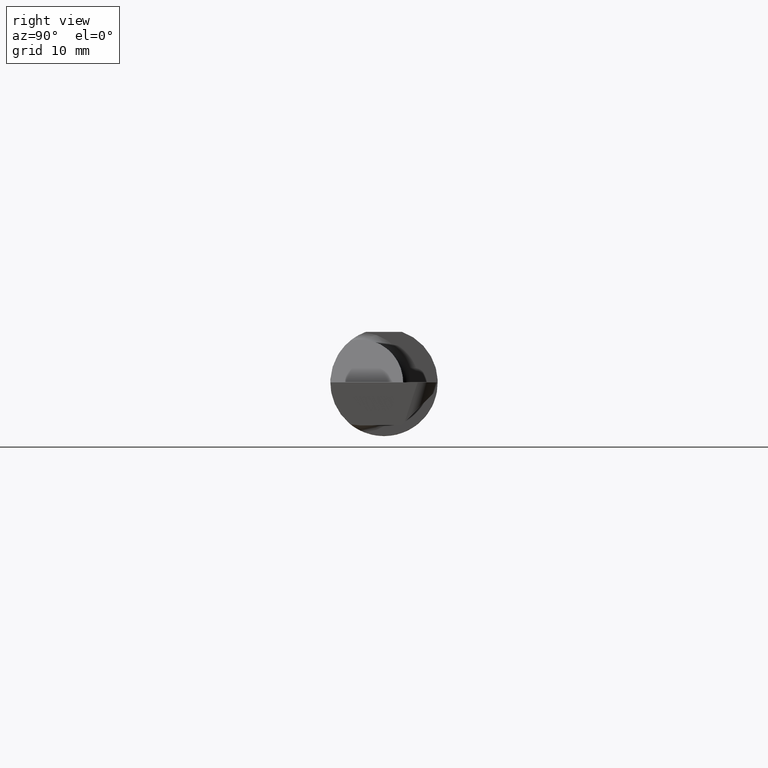
[diagram: clean part render]
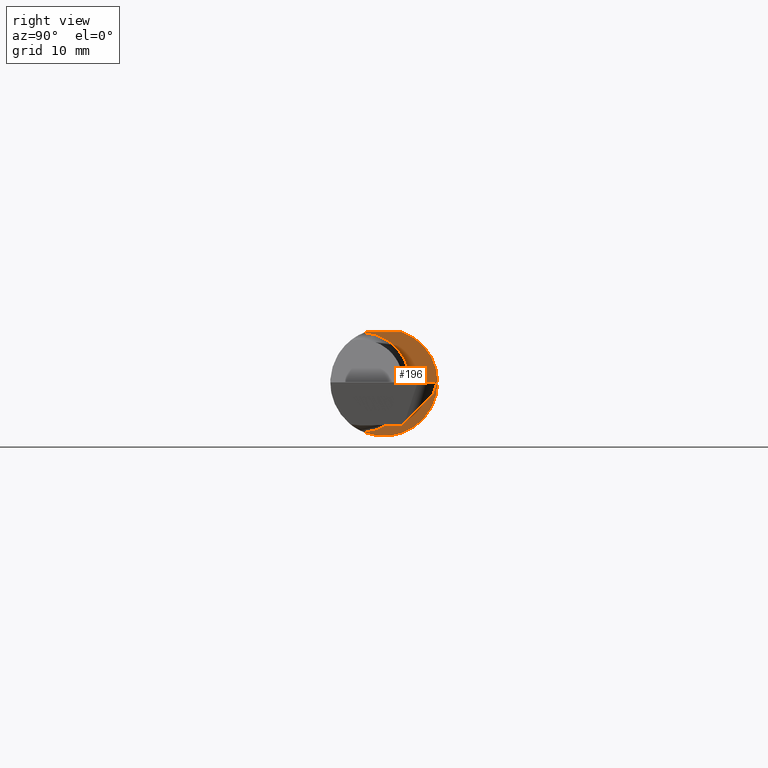
[diagram: same view with one face highlighted and labeled with its STEP entity id]
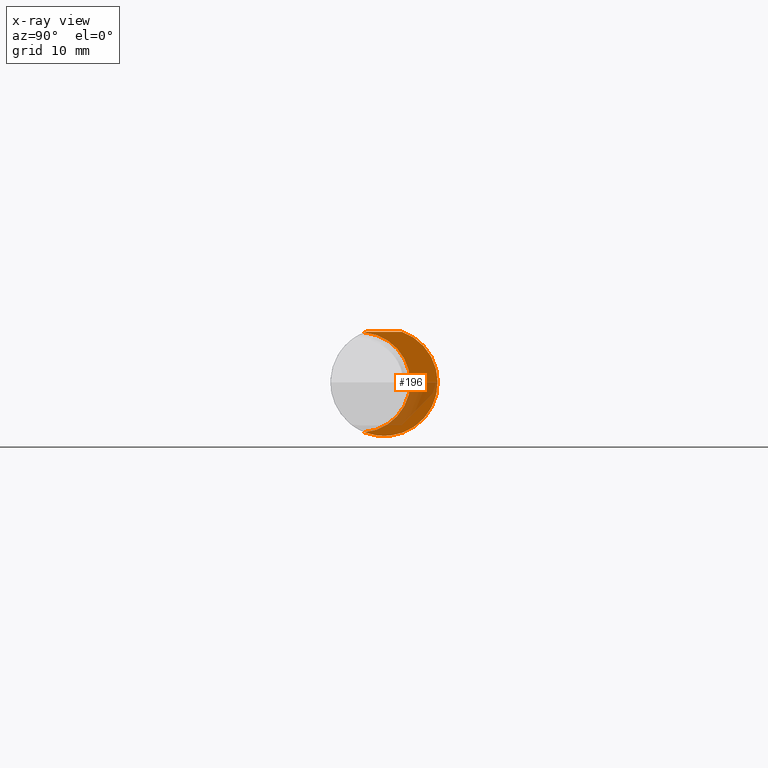
[diagram: x-ray of the same camera — body ghosted, the highlighted face saturated]
A machine part, right view. The second image highlights one B-rep face of the part: STEP entity #196.
The next image is the same camera in x-ray: the body ghosted, the highlighted face saturated — about 28% of this face is hidden behind the body in this view.
In plain terms, the highlighted planar face has unit normal (1, 0, 0).
Its self-contained STEP definition (entity closure, byte-faithful):
#8 = CIRCLE ( 'NONE', #465, 0.1873499999999999888 ) ;
#40 = VERTEX_POINT ( 'NONE', #216 ) ;
#64 = DIRECTION ( 'NONE',  ( 0.000000000000000000, 1.000000000000000000, 0.000000000000000000 ) ) ;
#72 = CARTESIAN_POINT ( 'NONE',  ( 1.199999999999999956, 0.000000000000000000, 0.000000000000000000 ) ) ;
#79 = VECTOR ( 'NONE', #509, 39.37007874015748143 ) ;
#99 = EDGE_LOOP ( 'NONE', ( #107, #209, #305, #167 ) ) ;
#107 = ORIENTED_EDGE ( 'NONE', *, *, #272, .T. ) ;
#132 = CARTESIAN_POINT ( 'NONE',  ( 1.199999999999999956, -0.08335000000000007681, 0.000000000000000000 ) ) ;
#138 = CARTESIAN_POINT ( 'NONE',  ( 1.199999999999999956, -0.06325108694718287183, 0.1763499999999999235 ) ) ;
#158 = VERTEX_POINT ( 'NONE', #138 ) ;
#167 = ORIENTED_EDGE ( 'NONE', *, *, #459, .T. ) ;
#172 = DIRECTION ( 'NONE',  ( 1.000000000000000000, 7.267260269538567824E-17, 0.000000000000000000 ) ) ;
#186 = DIRECTION ( 'NONE',  ( -1.000000000000000000, -7.267260269538567824E-17, -0.000000000000000000 ) ) ;
#196 = ADVANCED_FACE ( 'NONE', ( #437 ), #496, .T. ) ;
#206 = AXIS2_PLACEMENT_3D ( 'NONE', #433, #288, #64 ) ;
#209 = ORIENTED_EDGE ( 'NONE', *, *, #385, .F. ) ;
#216 = CARTESIAN_POINT ( 'NONE',  ( 1.199999999999999956, -0.06851976604679066440, 0.1743704796142198643 ) ) ;
#226 = EDGE_CURVE ( 'NONE', #158, #40, #8, .T. ) ;
#231 = CARTESIAN_POINT ( 'NONE',  ( 1.199999999999999956, 0.1873499999999998222, 0.000000000000000000 ) ) ;
#245 = LINE ( 'NONE', #353, #79 ) ;
#272 = EDGE_CURVE ( 'NONE', #430, #678, #293, .T. ) ;
#288 = DIRECTION ( 'NONE',  ( 1.000000000000000000, 7.267260269538567824E-17, 0.000000000000000000 ) ) ;
#293 = CIRCLE ( 'NONE', #206, 0.1873499999999999888 ) ;
#295 = CARTESIAN_POINT ( 'NONE',  ( 1.199999999999999956, -0.06851976604679066440, -0.1743704796142198643 ) ) ;
#305 = ORIENTED_EDGE ( 'NONE', *, *, #226, .T. ) ;
#338 = CARTESIAN_POINT ( 'NONE',  ( 1.199999999999999956, 0.06325108694718235836, 0.1763499999999999235 ) ) ;
#340 = CIRCLE ( 'NONE', #667, 0.1749999999999999889 ) ;
#350 = AXIS2_PLACEMENT_3D ( 'NONE', #231, #559, #441 ) ;
#353 = CARTESIAN_POINT ( 'NONE',  ( 1.199999999999999956, 0.1873499999999997112, 0.1763499999999999235 ) ) ;
#385 = EDGE_CURVE ( 'NONE', #158, #678, #245, .T. ) ;
#425 = DIRECTION ( 'NONE',  ( 0.000000000000000000, -1.000000000000000000, 0.000000000000000000 ) ) ;
#430 = VERTEX_POINT ( 'NONE', #295 ) ;
#433 = CARTESIAN_POINT ( 'NONE',  ( 1.199999999999999956, 0.000000000000000000, 0.000000000000000000 ) ) ;
#437 = FACE_OUTER_BOUND ( 'NONE', #99, .T. ) ;
#441 = DIRECTION ( 'NONE',  ( -7.267260269538567824E-17, 1.000000000000000000, 0.000000000000000000 ) ) ;
#459 = EDGE_CURVE ( 'NONE', #40, #430, #340, .T. ) ;
#465 = AXIS2_PLACEMENT_3D ( 'NONE', #72, #172, #650 ) ;
#496 = PLANE ( 'NONE',  #350 ) ;
#509 = DIRECTION ( 'NONE',  ( -7.267260269538567824E-17, 1.000000000000000000, 0.000000000000000000 ) ) ;
#559 = DIRECTION ( 'NONE',  ( 1.000000000000000000, 7.267260269538567824E-17, 0.000000000000000000 ) ) ;
#650 = DIRECTION ( 'NONE',  ( 0.000000000000000000, 1.000000000000000000, 0.000000000000000000 ) ) ;
#667 = AXIS2_PLACEMENT_3D ( 'NONE', #132, #186, #425 ) ;
#678 = VERTEX_POINT ( 'NONE', #338 ) ;